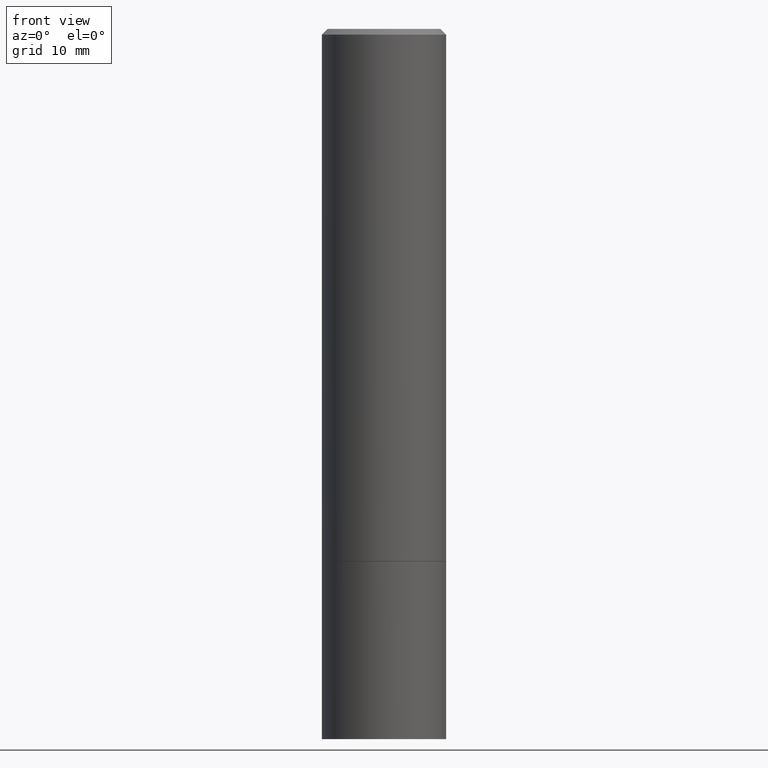
[diagram: clean part render]
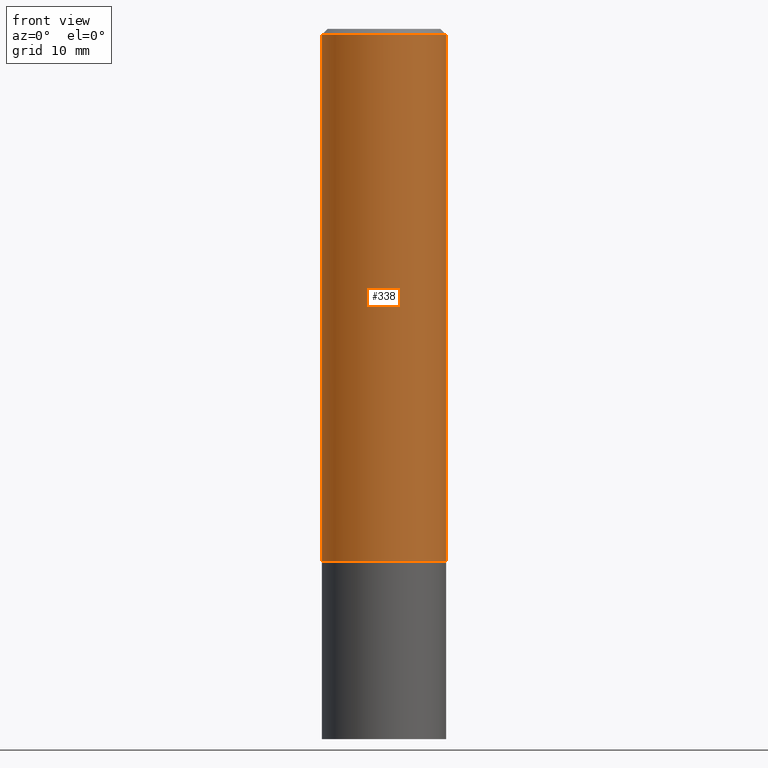
[diagram: same view with one face highlighted and labeled with its STEP entity id]
A machine part, front view. The second image highlights one B-rep face of the part: STEP entity #338.
In plain terms, the highlighted cylindrical surface (partial cylindrical patch) has radius 5.5562 mm, axis along (-0, 0, 1).
Its self-contained STEP definition (entity closure, byte-faithful):
#4 = DIRECTION ( 'NONE',  ( -2.445468806185136597E-29, 3.491481338843145583E-15, 1.000000000000000000 ) ) ;
#8 = FACE_OUTER_BOUND ( 'NONE', #14, .T. ) ;
#14 = EDGE_LOOP ( 'NONE', ( #22, #354, #36, #223 ) ) ;
#22 = ORIENTED_EDGE ( 'NONE', *, *, #360, .F. ) ;
#31 = CARTESIAN_POINT ( 'NONE',  ( 4.582808542790945516E-29, -6.543036028992054911E-15, -1.874000000000000110 ) ) ;
#36 = ORIENTED_EDGE ( 'NONE', *, *, #87, .T. ) ;
#44 = VERTEX_POINT ( 'NONE', #277 ) ;
#87 = EDGE_CURVE ( 'NONE', #105, #136, #304, .T. ) ;
#105 = VERTEX_POINT ( 'NONE', #185 ) ;
#116 = CYLINDRICAL_SURFACE ( 'NONE', #219, 0.2187499999999998057 ) ;
#120 = DIRECTION ( 'NONE',  ( -2.445468806185136877E-29, 3.491481338843145188E-15, 1.000000000000000000 ) ) ;
#122 = LINE ( 'NONE', #293, #321 ) ;
#128 = CIRCLE ( 'NONE', #201, 0.2187499999999999445 ) ;
#136 = VERTEX_POINT ( 'NONE', #191 ) ;
#137 = VERTEX_POINT ( 'NONE', #303 ) ;
#182 = EDGE_CURVE ( 'NONE', #44, #136, #316, .T. ) ;
#185 = CARTESIAN_POINT ( 'NONE',  ( 0.2187499999999999445, -8.070559114735925754E-15, -1.874000000000000110 ) ) ;
#191 = CARTESIAN_POINT ( 'NONE',  ( 0.2187499999999997224, -1.570563563789383461E-15, -0.02000000000000005246 ) ) ;
#201 = AXIS2_PLACEMENT_3D ( 'NONE', #31, #4, #332 ) ;
#219 = AXIS2_PLACEMENT_3D ( 'NONE', #349, #234, #319 ) ;
#223 = ORIENTED_EDGE ( 'NONE', *, *, #182, .F. ) ;
#227 = CARTESIAN_POINT ( 'NONE',  ( 4.890937612370285420E-31, -6.982962677686308865E-17, -0.02000000000000005246 ) ) ;
#234 = DIRECTION ( 'NONE',  ( -2.445468806185136597E-29, 3.491481338843145583E-15, 1.000000000000000000 ) ) ;
#245 = DIRECTION ( 'NONE',  ( -2.445468806185136877E-29, 3.491481338843145188E-15, 1.000000000000000000 ) ) ;
#273 = EDGE_CURVE ( 'NONE', #137, #105, #128, .T. ) ;
#277 = CARTESIAN_POINT ( 'NONE',  ( -0.2187499999999997224, 1.457693458967005770E-15, -0.02000000000000005246 ) ) ;
#280 = CARTESIAN_POINT ( 'NONE',  ( 0.2187499999999998057, -1.527523085743869462E-15, 1.066663669705360184E-29 ) ) ;
#287 = DIRECTION ( 'NONE',  ( 1.000000000000000000, -6.982962677686266711E-15, 0.000000000000000000 ) ) ;
#293 = CARTESIAN_POINT ( 'NONE',  ( -0.2187499999999998057, 1.554312234475217776E-15, -1.076017050993259781E-29 ) ) ;
#303 = CARTESIAN_POINT ( 'NONE',  ( -0.2187499999999999445, -1.752120593409238962E-15, -1.874000000000000110 ) ) ;
#304 = LINE ( 'NONE', #280, #346 ) ;
#306 = DIRECTION ( 'NONE',  ( -2.445468806185136597E-29, 3.491481338843145583E-15, 1.000000000000000000 ) ) ;
#316 = CIRCLE ( 'NONE', #337, 0.2187499999999997224 ) ;
#319 = DIRECTION ( 'NONE',  ( 1.000000000000000000, -6.982962677686266711E-15, 4.876176775795936353E-29 ) ) ;
#321 = VECTOR ( 'NONE', #120, 39.37007874015748143 ) ;
#332 = DIRECTION ( 'NONE',  ( 1.000000000000000000, -6.982962677686269077E-15, 0.000000000000000000 ) ) ;
#337 = AXIS2_PLACEMENT_3D ( 'NONE', #227, #306, #287 ) ;
#338 = ADVANCED_FACE ( 'NONE', ( #8 ), #116, .T. ) ;
#346 = VECTOR ( 'NONE', #245, 39.37007874015748143 ) ;
#349 = CARTESIAN_POINT ( 'NONE',  ( 0.000000000000000000, 0.000000000000000000, 0.000000000000000000 ) ) ;
#354 = ORIENTED_EDGE ( 'NONE', *, *, #273, .T. ) ;
#360 = EDGE_CURVE ( 'NONE', #137, #44, #122, .T. ) ;